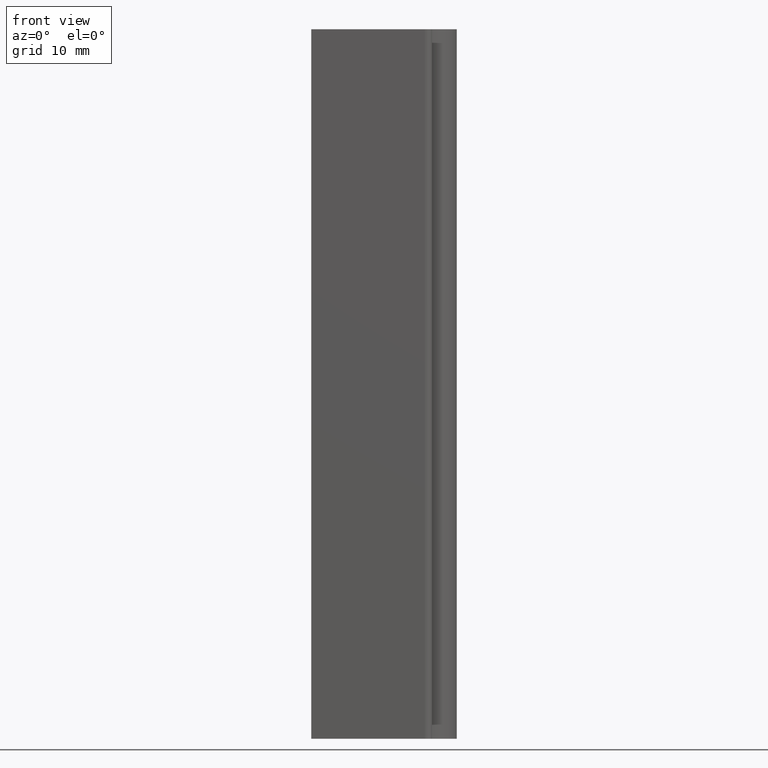
[diagram: clean part render]
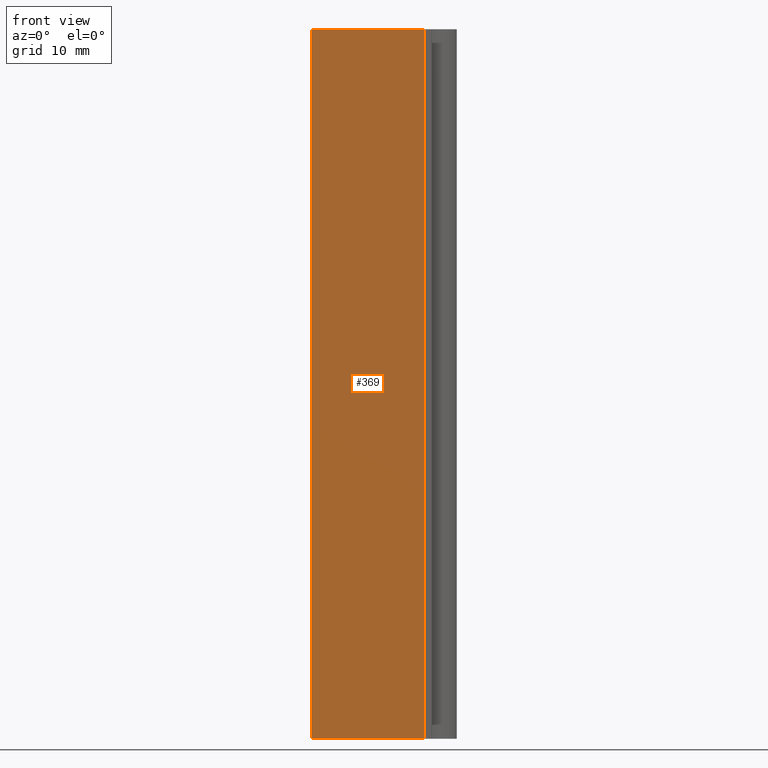
[diagram: same view with one face highlighted and labeled with its STEP entity id]
A machine part, front view. The second image highlights one B-rep face of the part: STEP entity #369.
In plain terms, the highlighted planar face has unit normal (0, -1, 0).
Its self-contained STEP definition (entity closure, byte-faithful):
#52=FACE_OUTER_BOUND('',#73,.T.);
#73=EDGE_LOOP('',(#253,#254,#255,#256));
#94=LINE('',#601,#131);
#95=LINE('',#603,#132);
#96=LINE('',#605,#133);
#97=LINE('',#606,#134);
#131=VECTOR('',#483,10.);
#132=VECTOR('',#484,10.);
#133=VECTOR('',#485,10.);
#134=VECTOR('',#486,10.);
#168=VERTEX_POINT('',#599);
#169=VERTEX_POINT('',#600);
#170=VERTEX_POINT('',#602);
#171=VERTEX_POINT('',#604);
#202=EDGE_CURVE('',#168,#169,#94,.T.);
#203=EDGE_CURVE('',#169,#170,#95,.T.);
#204=EDGE_CURVE('',#171,#170,#96,.T.);
#205=EDGE_CURVE('',#168,#171,#97,.T.);
#253=ORIENTED_EDGE('',*,*,#202,.T.);
#254=ORIENTED_EDGE('',*,*,#203,.T.);
#255=ORIENTED_EDGE('',*,*,#204,.F.);
#256=ORIENTED_EDGE('',*,*,#205,.F.);
#355=PLANE('',#438);
#369=ADVANCED_FACE('',(#52),#355,.T.);
#438=AXIS2_PLACEMENT_3D('',#598,#481,#482);
#481=DIRECTION('center_axis',(6.93889390390723E-17,-1.,0.));
#482=DIRECTION('ref_axis',(1.,6.93889390390723E-17,0.));
#483=DIRECTION('',(1.,6.93889390390723E-17,0.));
#484=DIRECTION('',(0.,0.,1.));
#485=DIRECTION('',(1.,6.93889390390723E-17,0.));
#486=DIRECTION('',(0.,0.,1.));
#598=CARTESIAN_POINT('Origin',(-15.5,-8.00000000000038,0.));
#599=CARTESIAN_POINT('',(-15.5,-8.00000000000038,0.));
#600=CARTESIAN_POINT('',(0.500000000000001,-8.00000000000038,0.));
#601=CARTESIAN_POINT('',(-15.5,-8.00000000000038,0.));
#602=CARTESIAN_POINT('',(0.500000000000001,-8.00000000000038,100.));
#603=CARTESIAN_POINT('',(0.500000000000001,-8.00000000000038,0.));
#604=CARTESIAN_POINT('',(-15.5,-8.00000000000038,100.));
#605=CARTESIAN_POINT('',(-15.5,-8.00000000000038,100.));
#606=CARTESIAN_POINT('',(-15.5,-8.00000000000038,0.));